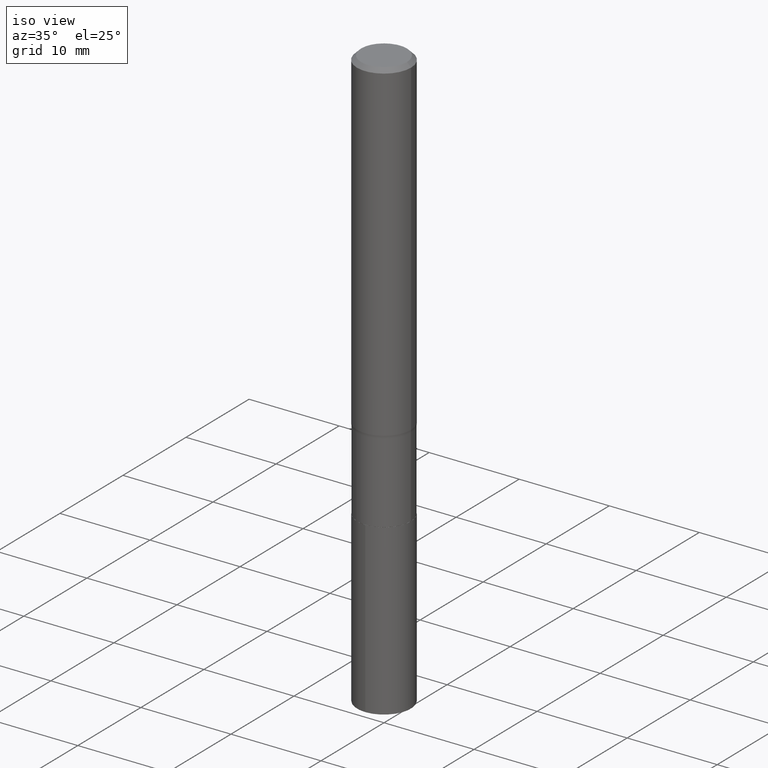
[diagram: clean part render]
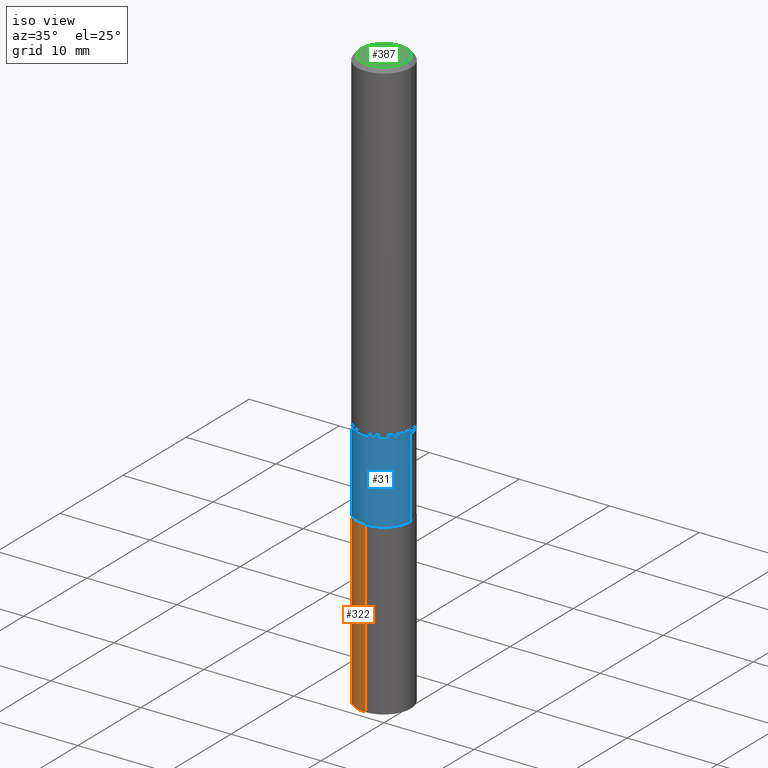
[diagram: same view with three faces highlighted in distinct colors, each labeled with its STEP entity id]
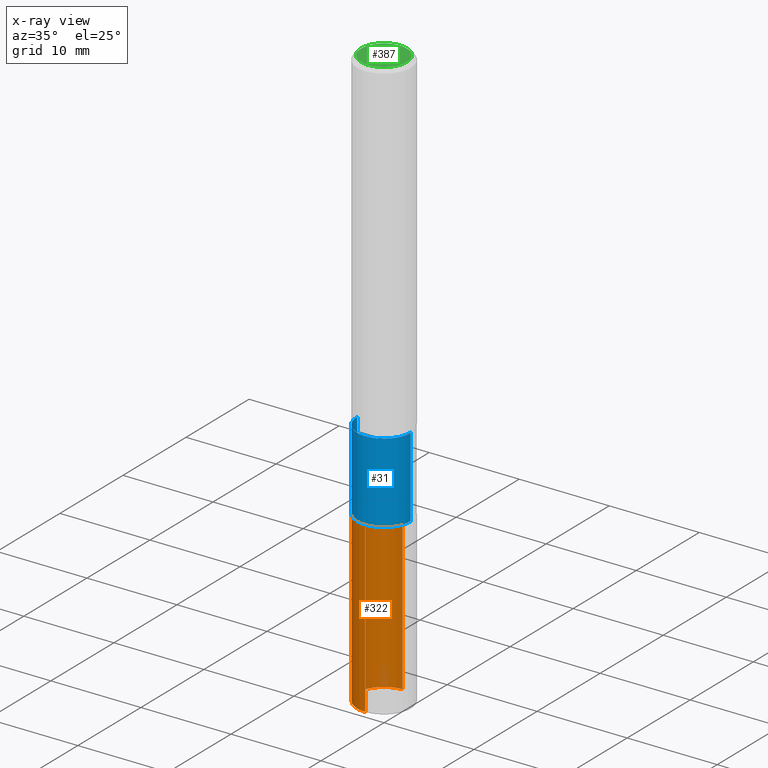
[diagram: x-ray of the same camera — body ghosted, the three highlighted faces saturated]
A machine part, iso view with three faces highlighted in distinct colors.
The next image is the same camera in x-ray (body ghosted, the three faces saturated) — at least one of them is partly hidden behind the body in this view.
Their STEP definitions:

[orange] entity #322 — the highlighted cylindrical surface (edge-blend (fillet) strip) has radius 2.9769 mm, axis along (-0, 0, 1).
#5 = CARTESIAN_POINT ( 'NONE',  ( 8.327560863108815843E-16, 0.1171999999999936842, -1.811000000000000165 ) ) ;
#12 = DIRECTION ( 'NONE',  ( -6.982962677686265922E-15, -1.000000000000000000, 4.661856644478264948E-15 ) ) ;
#30 = VERTEX_POINT ( 'NONE', #389 ) ;
#43 = CARTESIAN_POINT ( 'NONE',  ( -8.184032258247860819E-16, -0.1172000000000063130, -1.810999999999999721 ) ) ;
#62 = ORIENTED_EDGE ( 'NONE', *, *, #105, .F. ) ;
#73 = VECTOR ( 'NONE', #157, 39.37007874015748143 ) ;
#76 = CARTESIAN_POINT ( 'NONE',  ( -8.184032258247860819E-16, -0.1172000000000063130, -1.810999999999999721 ) ) ;
#82 = CARTESIAN_POINT ( 'NONE',  ( -8.184032258247681353E-16, -0.1172000000000089498, -2.551048126332119192 ) ) ;
#102 = VECTOR ( 'NONE', #386, 39.37007874015748143 ) ;
#105 = EDGE_CURVE ( 'NONE', #492, #109, #265, .T. ) ;
#107 = ORIENTED_EDGE ( 'NONE', *, *, #238, .F. ) ;
#109 = VERTEX_POINT ( 'NONE', #76 ) ;
#119 = DIRECTION ( 'NONE',  ( -2.445423962145081395E-29, 3.491545558060868781E-15, 1.000000000000000000 ) ) ;
#143 = CARTESIAN_POINT ( 'NONE',  ( 8.327560863108999253E-16, 0.1171999999999936842, -1.811000000000000165 ) ) ;
#157 = DIRECTION ( 'NONE',  ( -2.445423962145081676E-29, 3.491545558060868781E-15, 1.000000000000000000 ) ) ;
#163 = DIRECTION ( 'NONE',  ( -2.445423962145081395E-29, 3.491545558060868781E-15, 1.000000000000000000 ) ) ;
#168 = AXIS2_PLACEMENT_3D ( 'NONE', #231, #316, #384 ) ;
#197 = VERTEX_POINT ( 'NONE', #82 ) ;
#198 = FACE_OUTER_BOUND ( 'NONE', #268, .T. ) ;
#231 = CARTESIAN_POINT ( 'NONE',  ( 4.428744008001282238E-29, -6.323072704644935995E-15, -1.810999999999999943 ) ) ;
#238 = EDGE_CURVE ( 'NONE', #30, #492, #245, .T. ) ;
#245 = LINE ( 'NONE', #5, #102 ) ;
#265 = CIRCLE ( 'NONE', #168, 0.1171999999999999986 ) ;
#268 = EDGE_LOOP ( 'NONE', ( #107, #444, #476, #62 ) ) ;
#277 = EDGE_CURVE ( 'NONE', #30, #197, #477, .T. ) ;
#289 = CARTESIAN_POINT ( 'NONE',  ( 4.428744008001282238E-29, -6.323072704644935995E-15, -1.810999999999999943 ) ) ;
#313 = EDGE_CURVE ( 'NONE', #197, #109, #425, .T. ) ;
#316 = DIRECTION ( 'NONE',  ( -2.445423962145081395E-29, 3.491545558060868781E-15, 1.000000000000000000 ) ) ;
#322 = ADVANCED_FACE ( 'NONE', ( #198 ), #354, .T. ) ;
#327 = AXIS2_PLACEMENT_3D ( 'NONE', #289, #163, #466 ) ;
#353 = CARTESIAN_POINT ( 'NONE',  ( 6.238475429274418212E-29, -8.906984452891117055E-15, -2.551048126332119637 ) ) ;
#354 = CYLINDRICAL_SURFACE ( 'NONE', #327, 0.1171999999999999986 ) ;
#383 = AXIS2_PLACEMENT_3D ( 'NONE', #353, #119, #12 ) ;
#384 = DIRECTION ( 'NONE',  ( -6.982962677686265922E-15, -1.000000000000000000, 2.330928322239132474E-15 ) ) ;
#386 = DIRECTION ( 'NONE',  ( -2.445423962145081676E-29, 3.491545558060868781E-15, 1.000000000000000000 ) ) ;
#389 = CARTESIAN_POINT ( 'NONE',  ( 8.327560863108999253E-16, 0.1171999999999911030, -2.551048126332120081 ) ) ;
#425 = LINE ( 'NONE', #43, #73 ) ;
#444 = ORIENTED_EDGE ( 'NONE', *, *, #277, .T. ) ;
#466 = DIRECTION ( 'NONE',  ( -6.982962677686265922E-15, -1.000000000000000000, 2.330928322239132474E-15 ) ) ;
#476 = ORIENTED_EDGE ( 'NONE', *, *, #313, .T. ) ;
#477 = CIRCLE ( 'NONE', #383, 0.1171999999999999986 ) ;
#492 = VERTEX_POINT ( 'NONE', #143 ) ;

[blue] entity #31 — the highlighted cylindrical surface (edge-blend (fillet) strip) has radius 2.9769 mm, axis along (-0, 0, 1).
#2 = EDGE_CURVE ( 'NONE', #341, #32, #288, .T. ) ;
#11 = ORIENTED_EDGE ( 'NONE', *, *, #38, .T. ) ;
#28 = VECTOR ( 'NONE', #88, 39.37007874015748143 ) ;
#31 = ADVANCED_FACE ( 'NONE', ( #431 ), #36, .T. ) ;
#32 = VERTEX_POINT ( 'NONE', #315 ) ;
#36 = CYLINDRICAL_SURFACE ( 'NONE', #249, 0.1171999999999999709 ) ;
#38 = EDGE_CURVE ( 'NONE', #53, #32, #422, .T. ) ;
#42 = ORIENTED_EDGE ( 'NONE', *, *, #46, .T. ) ;
#46 = EDGE_CURVE ( 'NONE', #147, #53, #217, .T. ) ;
#50 = LINE ( 'NONE', #236, #201 ) ;
#53 = VERTEX_POINT ( 'NONE', #54 ) ;
#54 = CARTESIAN_POINT ( 'NONE',  ( 0.1171999999999999847, -7.139730189800343763E-15, -1.810499999999999998 ) ) ;
#66 = AXIS2_PLACEMENT_3D ( 'NONE', #285, #116, #239 ) ;
#87 = CARTESIAN_POINT ( 'NONE',  ( -0.1171999999999999431, -4.878085365567953422E-15, -1.460799999999999876 ) ) ;
#88 = DIRECTION ( 'NONE',  ( -2.445468806185136877E-29, 3.491481338843145188E-15, 1.000000000000000000 ) ) ;
#116 = DIRECTION ( 'NONE',  ( -2.445468806185136597E-29, 3.491481338843145583E-15, 1.000000000000000000 ) ) ;
#147 = VERTEX_POINT ( 'NONE', #372 ) ;
#155 = DIRECTION ( 'NONE',  ( -2.445468806185136597E-29, 3.491481338843145583E-15, 1.000000000000000000 ) ) ;
#193 = CARTESIAN_POINT ( 'NONE',  ( 0.000000000000000000, 0.000000000000000000, 0.000000000000000000 ) ) ;
#201 = VECTOR ( 'NONE', #203, 39.37007874015748143 ) ;
#203 = DIRECTION ( 'NONE',  ( -2.445468806185136877E-29, 3.491481338843145188E-15, 1.000000000000000000 ) ) ;
#204 = ORIENTED_EDGE ( 'NONE', *, *, #2, .F. ) ;
#217 = CIRCLE ( 'NONE', #336, 0.1171999999999999847 ) ;
#236 = CARTESIAN_POINT ( 'NONE',  ( -0.1171999999999999709, 8.327560863108372108E-16, -5.764991925778747720E-30 ) ) ;
#239 = DIRECTION ( 'NONE',  ( 1.000000000000000000, -6.982962677686265133E-15, 0.000000000000000000 ) ) ;
#249 = AXIS2_PLACEMENT_3D ( 'NONE', #193, #155, #278 ) ;
#260 = EDGE_LOOP ( 'NONE', ( #405, #42, #11, #204 ) ) ;
#270 = EDGE_CURVE ( 'NONE', #147, #341, #50, .T. ) ;
#278 = DIRECTION ( 'NONE',  ( 1.000000000000000000, -6.982962677686266711E-15, 4.876176775795935793E-29 ) ) ;
#285 = CARTESIAN_POINT ( 'NONE',  ( 3.572340832075246748E-29, -5.100355939782065986E-15, -1.460799999999999876 ) ) ;
#288 = CIRCLE ( 'NONE', #66, 0.1171999999999999431 ) ;
#290 = DIRECTION ( 'NONE',  ( 1.000000000000000000, -6.982962677686262766E-15, 0.000000000000000000 ) ) ;
#296 = CARTESIAN_POINT ( 'NONE',  ( 0.1171999999999999709, -8.184032258248302581E-16, 5.714879181232835073E-30 ) ) ;
#315 = CARTESIAN_POINT ( 'NONE',  ( 0.1171999999999999431, -5.918759165606896047E-15, -1.460799999999999876 ) ) ;
#336 = AXIS2_PLACEMENT_3D ( 'NONE', #479, #396, #290 ) ;
#341 = VERTEX_POINT ( 'NONE', #87 ) ;
#372 = CARTESIAN_POINT ( 'NONE',  ( -0.1171999999999999986, -4.878085365567953422E-15, -1.810499999999999998 ) ) ;
#396 = DIRECTION ( 'NONE',  ( -2.445468806185136597E-29, 3.491481338843145583E-15, 1.000000000000000000 ) ) ;
#405 = ORIENTED_EDGE ( 'NONE', *, *, #270, .F. ) ;
#422 = LINE ( 'NONE', #296, #28 ) ;
#431 = FACE_OUTER_BOUND ( 'NONE', #260, .T. ) ;
#479 = CARTESIAN_POINT ( 'NONE',  ( 4.427521273598189436E-29, -6.321326963975514491E-15, -1.810499999999999998 ) ) ;

[green] entity #387 — the highlighted planar face has unit normal (0, -0, -1).
#25 = FACE_OUTER_BOUND ( 'NONE', #57, .T. ) ;
#41 = CARTESIAN_POINT ( 'NONE',  ( 9.721685407353558503E-46, -1.387999024809845952E-31, -3.975387207052179891E-17 ) ) ;
#45 = DIRECTION ( 'NONE',  ( 1.000000000000000000, -6.982962677686266711E-15, 4.879445411049954809E-29 ) ) ;
#57 = EDGE_LOOP ( 'NONE', ( #475, #91 ) ) ;
#58 = CARTESIAN_POINT ( 'NONE',  ( -0.1003850000000000159, 7.319105043583386689E-16, -3.975387207052680940E-17 ) ) ;
#91 = ORIENTED_EDGE ( 'NONE', *, *, #112, .T. ) ;
#92 = PLANE ( 'NONE',  #271 ) ;
#112 = EDGE_CURVE ( 'NONE', #428, #407, #232, .T. ) ;
#156 = DIRECTION ( 'NONE',  ( -2.445468806185136597E-29, 3.491481338843145583E-15, 1.000000000000000000 ) ) ;
#176 = CARTESIAN_POINT ( 'NONE',  ( 0.1003850000000000159, -7.803837484803599345E-16, -3.975387207051662201E-17 ) ) ;
#224 = CIRCLE ( 'NONE', #352, 0.1003850000000000159 ) ;
#229 = CARTESIAN_POINT ( 'NONE',  ( 9.721685407353558503E-46, -1.387999024809845952E-31, -3.975387207052179891E-17 ) ) ;
#232 = CIRCLE ( 'NONE', #329, 0.1003850000000000159 ) ;
#247 = CARTESIAN_POINT ( 'NONE',  ( 4.860842703676779252E-46, -6.939995124049229759E-32, -1.987693603526089945E-17 ) ) ;
#271 = AXIS2_PLACEMENT_3D ( 'NONE', #247, #398, #360 ) ;
#305 = EDGE_CURVE ( 'NONE', #407, #428, #224, .T. ) ;
#329 = AXIS2_PLACEMENT_3D ( 'NONE', #229, #156, #458 ) ;
#352 = AXIS2_PLACEMENT_3D ( 'NONE', #41, #388, #45 ) ;
#360 = DIRECTION ( 'NONE',  ( -1.000000000000000000, 6.982962677686265922E-15, -4.876176775795935793E-29 ) ) ;
#387 = ADVANCED_FACE ( 'NONE', ( #25 ), #92, .F. ) ;
#388 = DIRECTION ( 'NONE',  ( -2.445468806185136597E-29, 3.491481338843145583E-15, 1.000000000000000000 ) ) ;
#398 = DIRECTION ( 'NONE',  ( 2.438088387897960049E-29, -3.491481338843145188E-15, -1.000000000000000000 ) ) ;
#407 = VERTEX_POINT ( 'NONE', #58 ) ;
#428 = VERTEX_POINT ( 'NONE', #176 ) ;
#458 = DIRECTION ( 'NONE',  ( 1.000000000000000000, -6.982962677686266711E-15, 4.879445411049954809E-29 ) ) ;
#475 = ORIENTED_EDGE ( 'NONE', *, *, #305, .T. ) ;